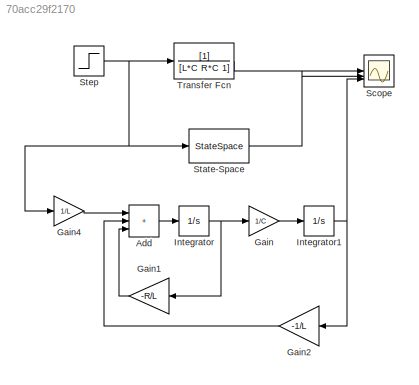
MODEL slx_70acc29f2170
KIND model
CONFIG AbsTol = auto
CONFIG EnableMultiTasking = off
CONFIG FixedStep = auto
CONFIG MaxStep = auto
CONFIG MinStep = auto
CONFIG RelTol = 1e-3
CONFIG SampleTimeConstraint = Unconstrained
CONFIG SolverName = VariableStepAuto
CONFIG StartTime = 0.0
CONFIG StopTime = 5e-4
BLOCK [Sum] Add
  IconShape = rectangular
  Inputs = +++
BLOCK [Gain] Gain
  Gain = 1/C
BLOCK [Gain] Gain1
  Gain = -R/L
  NameLocation = top
BLOCK [Gain] Gain2
  Gain = -1/L
  NameLocation = top
BLOCK [Gain] Gain4
  Gain = 1/L
BLOCK [Integrator] Integrator
BLOCK [Integrator] Integrator1
BLOCK [Scope] Scope
  Floating = off
  NumInputPorts = 3
  ScopeSpecificationString = Simulink.scopes.TimeScopeBlockCfg('CurrentConfiguration', extmgr.ConfigurationSet(extmgr.Configuration('Core','General UI',true),extmgr.Configuration('Core','Source UI',true),extmgr.Configuration('Sources','WiredSimulink',true),extmgr.Configuration('Visuals','Time Domain',true,'SerializedDisplays',{struct('MinYLimReal','-0.163','MaxYLimReal','1.46701','YLabelReal','','MinYLimMag','0.00000','MaxYLi...<+3522ch>
BLOCK [StateSpace] State-Space
  A = [-R/L,-1/L;1/C,0]
  B = [1/L;0]
  C = [0,1]
  D = 0
  InitialCondition = 0
BLOCK [Step] Step
  SampleTime = 0
  Time = 1e-4
BLOCK [TransferFcn] Transfer Fcn
  Denominator = [L*C R*C 1]
LINE Add:1 -> Integrator:1
LINE Gain1:1 -> Add:3
LINE Gain2:1 -> Add:2
LINE Gain4:1 -> Add:1
LINE Gain:1 -> Integrator1:1
NET Integrator1:1 -> Gain2:1, Scope:3
NET Integrator:1 -> Gain1:1, Gain:1
LINE State-Space:1 -> Scope:2
NET Step:1 -> Gain4:1, State-Space:1, Transfer Fcn:1
LINE Transfer Fcn:1 -> Scope:1
note: NET lines group one-source signal fan-out (src -> all destinations, sorted); 1:1 wires keep LINE
